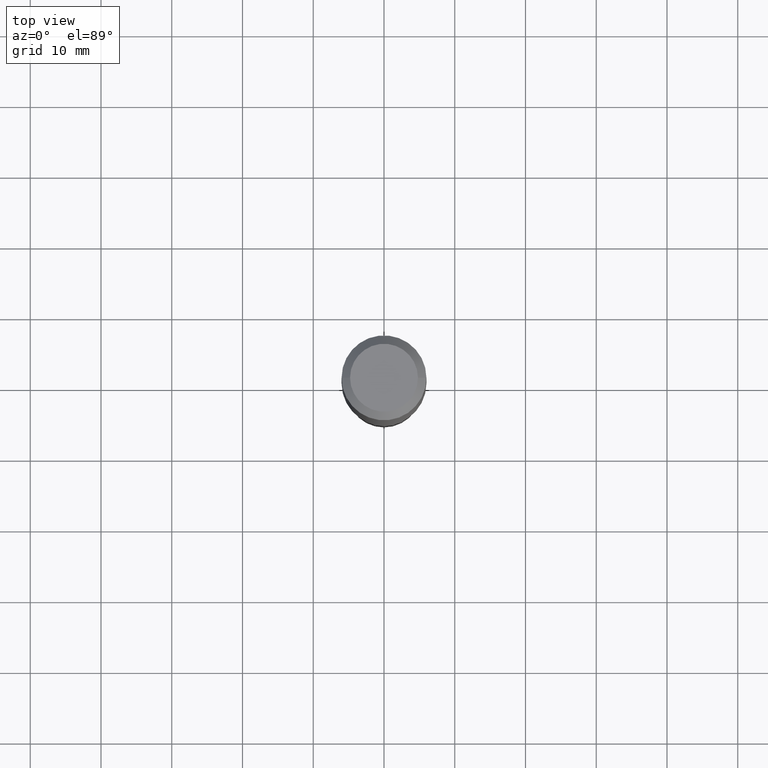
[diagram: clean part render]
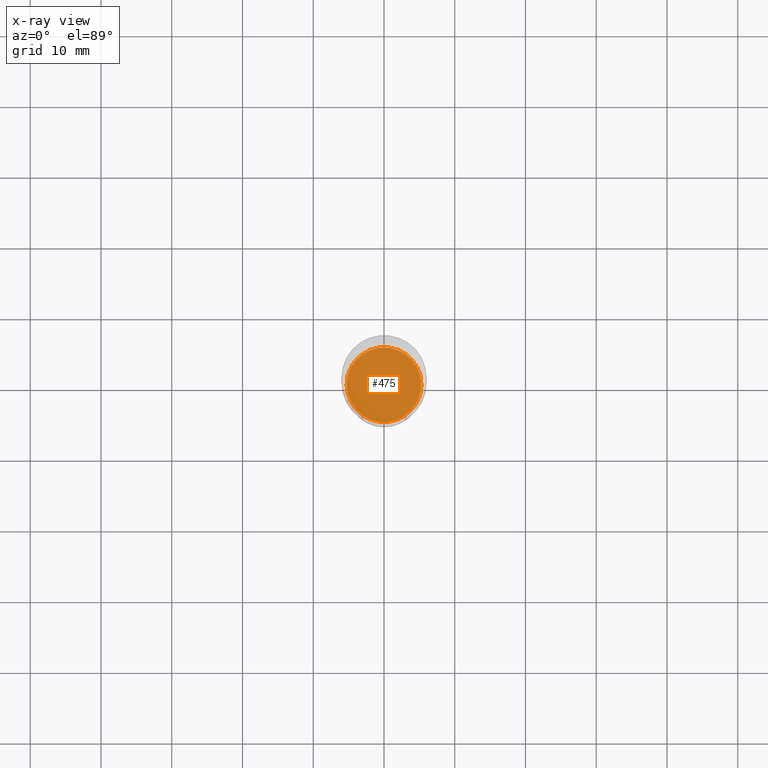
[diagram: x-ray — body ghosted, one internal face saturated and labeled with its STEP entity id]
A machine part, top view, then the same camera in x-ray: the body is ghosted and one INTERNAL B-rep face — a face not visible from any outside direction — is saturated and labeled: STEP entity #475.
In plain terms, the highlighted planar face has unit normal (-0, 0, 1).
Its self-contained STEP definition (entity closure, byte-faithful):
#25 = EDGE_CURVE ( 'NONE', #193, #421, #473, .T. ) ;
#57 = CARTESIAN_POINT ( 'NONE',  ( 5.545345064905416332E-29, -7.917283083960716952E-15, -2.267600000000000282 ) ) ;
#68 = EDGE_CURVE ( 'NONE', #421, #193, #175, .T. ) ;
#73 = DIRECTION ( 'NONE',  ( -2.445468806185136597E-29, 3.491481338843145583E-15, 1.000000000000000000 ) ) ;
#80 = ORIENTED_EDGE ( 'NONE', *, *, #25, .F. ) ;
#130 = DIRECTION ( 'NONE',  ( 1.000000000000000000, -6.982962677686265922E-15, 4.876176775795935793E-29 ) ) ;
#134 = DIRECTION ( 'NONE',  ( -2.445468806185136597E-29, 3.491481338843145583E-15, 1.000000000000000000 ) ) ;
#158 = CARTESIAN_POINT ( 'NONE',  ( -0.2081500000000000017, -6.435639152301958385E-15, -2.267600000000000282 ) ) ;
#175 = CIRCLE ( 'NONE', #252, 0.2081500000000000017 ) ;
#193 = VERTEX_POINT ( 'NONE', #327 ) ;
#215 = CARTESIAN_POINT ( 'NONE',  ( 5.545345064905416332E-29, -7.917283083960716952E-15, -2.267600000000000282 ) ) ;
#235 = FACE_OUTER_BOUND ( 'NONE', #474, .T. ) ;
#238 = AXIS2_PLACEMENT_3D ( 'NONE', #57, #267, #130 ) ;
#252 = AXIS2_PLACEMENT_3D ( 'NONE', #215, #73, #296 ) ;
#267 = DIRECTION ( 'NONE',  ( -2.438088387897960049E-29, 3.491481338843145188E-15, 1.000000000000000000 ) ) ;
#296 = DIRECTION ( 'NONE',  ( 1.000000000000000000, -6.982962677686263555E-15, 0.000000000000000000 ) ) ;
#308 = PLANE ( 'NONE',  #238 ) ;
#327 = CARTESIAN_POINT ( 'NONE',  ( 0.2081500000000000017, -9.370786765321112099E-15, -2.267600000000000282 ) ) ;
#352 = ORIENTED_EDGE ( 'NONE', *, *, #68, .F. ) ;
#393 = CARTESIAN_POINT ( 'NONE',  ( 5.545345064905416332E-29, -7.917283083960716952E-15, -2.267600000000000282 ) ) ;
#400 = AXIS2_PLACEMENT_3D ( 'NONE', #393, #134, #432 ) ;
#421 = VERTEX_POINT ( 'NONE', #158 ) ;
#432 = DIRECTION ( 'NONE',  ( 1.000000000000000000, -6.982962677686263555E-15, 0.000000000000000000 ) ) ;
#473 = CIRCLE ( 'NONE', #400, 0.2081500000000000017 ) ;
#474 = EDGE_LOOP ( 'NONE', ( #80, #352 ) ) ;
#475 = ADVANCED_FACE ( 'NONE', ( #235 ), #308, .F. ) ;